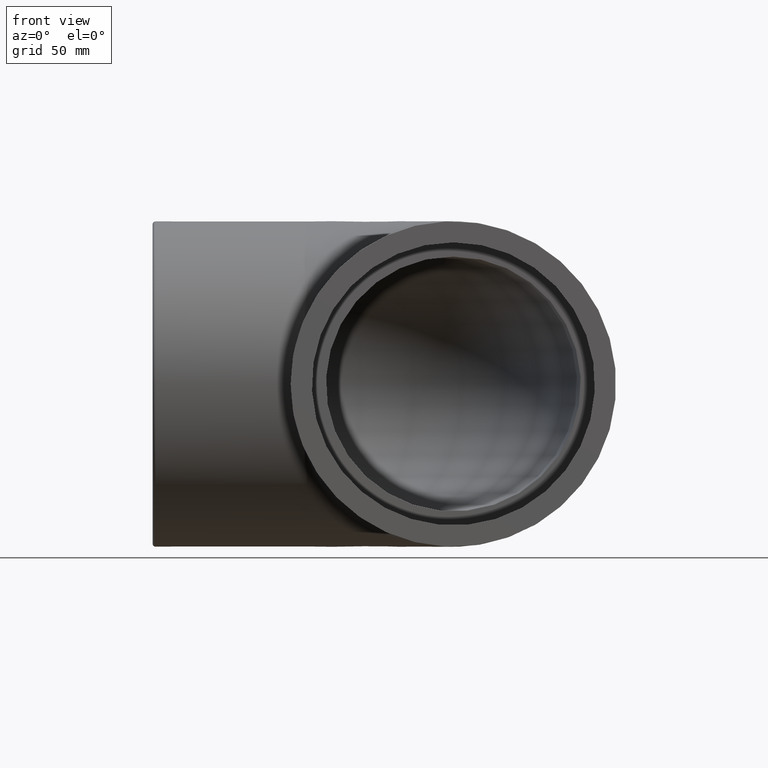
[diagram: clean part render]
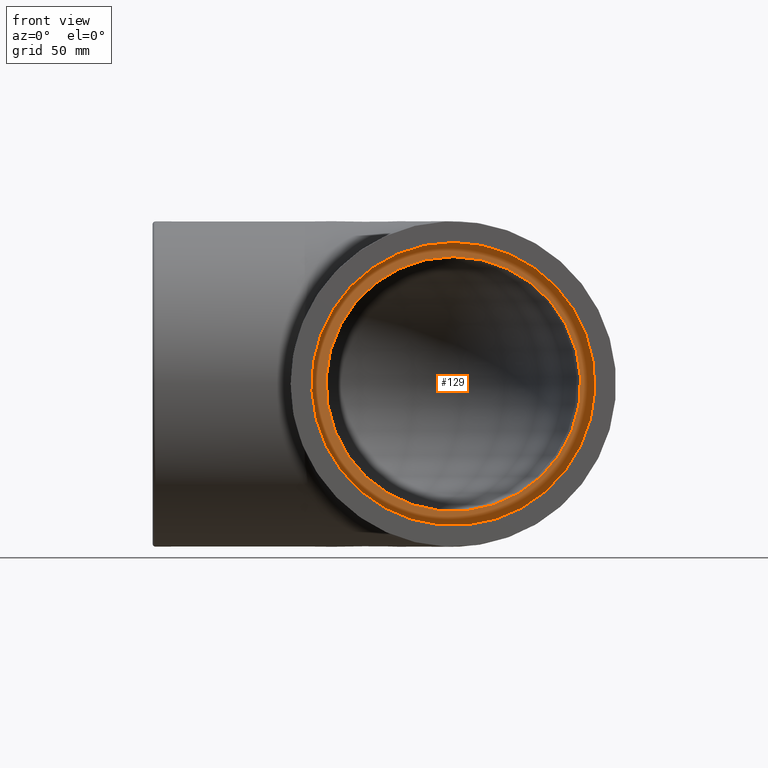
[diagram: same view with one face highlighted and labeled with its STEP entity id]
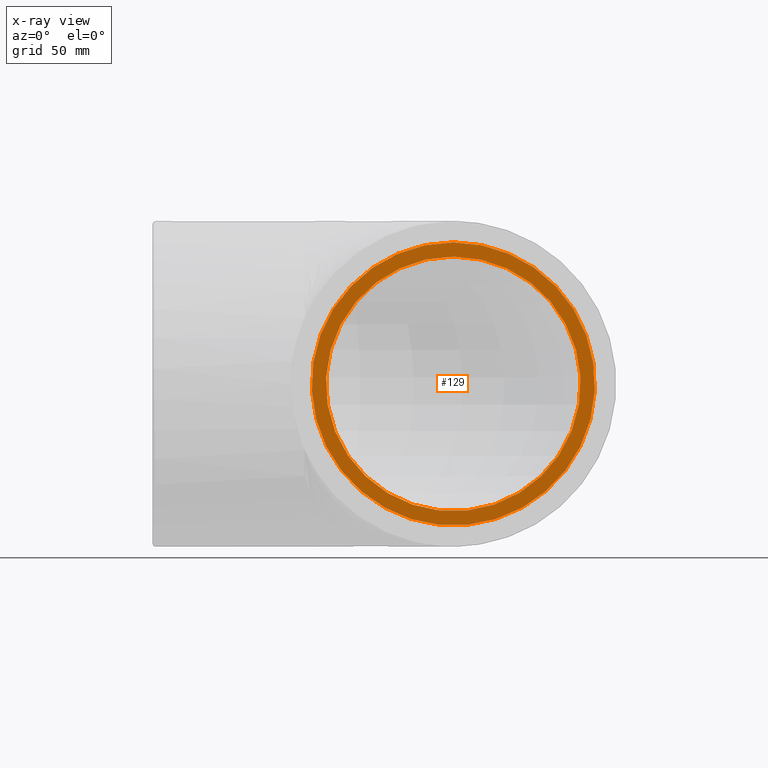
[diagram: x-ray of the same camera — body ghosted, the highlighted face saturated]
A machine part, front view. The second image highlights one B-rep face of the part: STEP entity #129.
The next image is the same camera in x-ray: the body ghosted, the highlighted face saturated — about 0% of this face is hidden behind the body in this view.
In plain terms, the highlighted planar face has unit normal (0, 1, 0).
Its self-contained STEP definition (entity closure, byte-faithful):
#17=PLANE('',#146);
#27=FACE_BOUND('',#51,.T.);
#37=FACE_OUTER_BOUND('',#50,.T.);
#50=EDGE_LOOP('',(#105));
#51=EDGE_LOOP('',(#106));
#67=CIRCLE('',#141,72.);
#69=CIRCLE('',#144,80.);
#78=VERTEX_POINT('',#210);
#80=VERTEX_POINT('',#215);
#89=EDGE_CURVE('',#78,#78,#67,.T.);
#91=EDGE_CURVE('',#80,#80,#69,.T.);
#105=ORIENTED_EDGE('',*,*,#91,.F.);
#106=ORIENTED_EDGE('',*,*,#89,.T.);
#129=ADVANCED_FACE('',(#37,#27),#17,.F.);
#141=AXIS2_PLACEMENT_3D('',#211,#166,#167);
#144=AXIS2_PLACEMENT_3D('',#216,#172,#173);
#146=AXIS2_PLACEMENT_3D('',#219,#176,#177);
#166=DIRECTION('center_axis',(6.12323399573677E-17,1.,0.));
#167=DIRECTION('ref_axis',(1.,-6.12323399573677E-17,0.));
#172=DIRECTION('center_axis',(6.12323399573677E-17,1.,0.));
#173=DIRECTION('ref_axis',(0.,0.,-1.));
#176=DIRECTION('center_axis',(6.12323399573677E-17,1.,0.));
#177=DIRECTION('ref_axis',(0.,0.,-1.));
#210=CARTESIAN_POINT('',(8.88178419700125E-15,-84.,72.));
#211=CARTESIAN_POINT('Origin',(0.,-84.,0.));
#215=CARTESIAN_POINT('',(-1.49406909495977E-14,-84.,80.));
#216=CARTESIAN_POINT('Origin',(-5.14351655641889E-15,-84.,0.));
#219=CARTESIAN_POINT('Origin',(-6.62381392258576E-15,-84.,-3.77702593176532E-15));